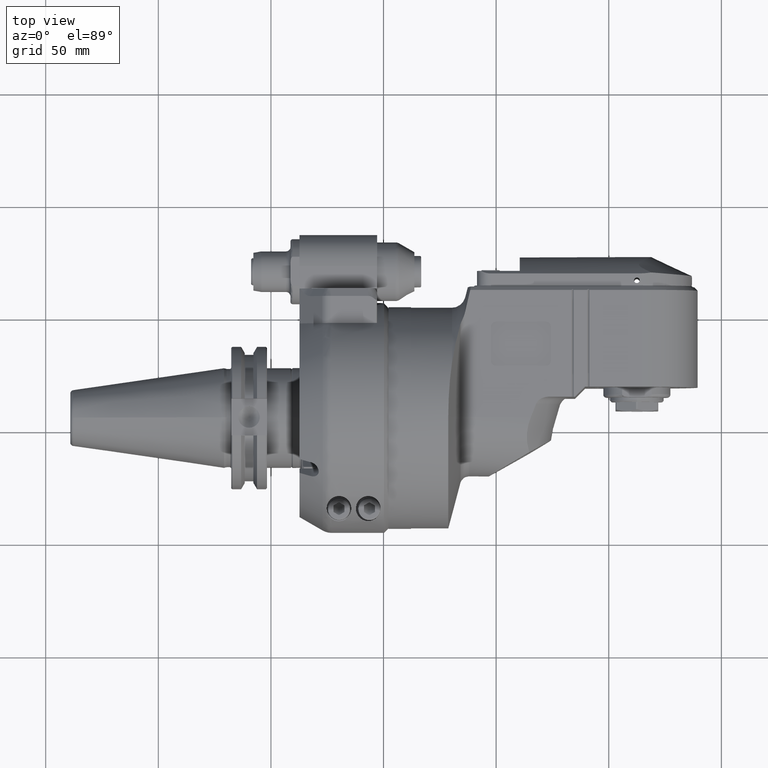
[diagram: clean part render]
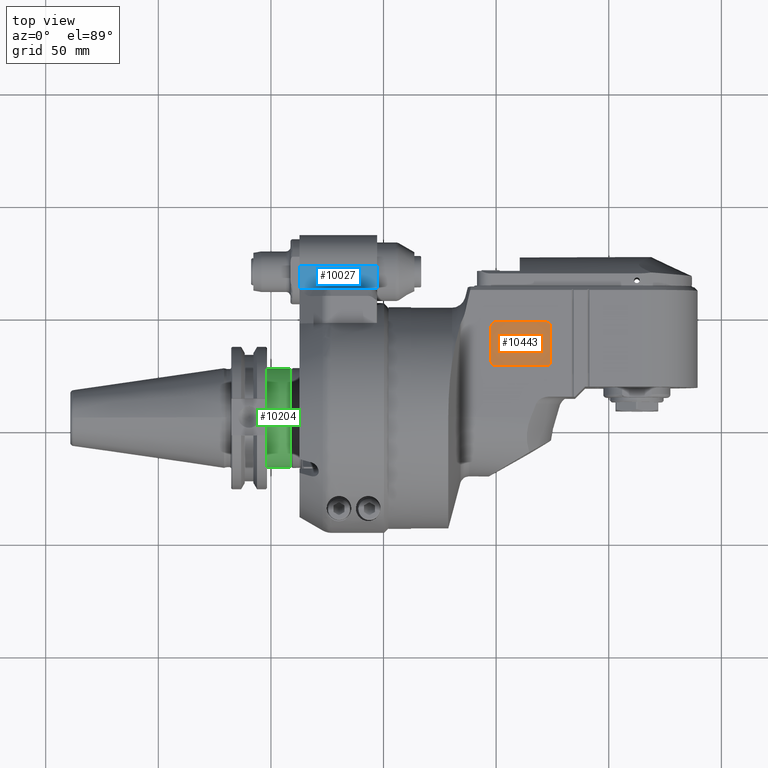
[diagram: same view with three faces highlighted in distinct colors, each labeled with its STEP entity id]
A machine part, top view with three faces highlighted in distinct colors.
Their STEP definitions:

[orange] entity #10443 — the highlighted planar face has unit normal (0, 0, 1).
#1081=PLANE('',#11704);
#1738=FACE_OUTER_BOUND('',#2453,.T.);
#2453=EDGE_LOOP('',(#9340,#9341,#9342,#9343,#9344,#9345,#9346,#9347));
#3159=LINE('',#48319,#3849);
#3160=LINE('',#48323,#3850);
#3161=LINE('',#48327,#3851);
#3162=LINE('',#48330,#3852);
#3849=VECTOR('',#14376,22.5);
#3850=VECTOR('',#14379,15.5);
#3851=VECTOR('',#14382,22.5);
#3852=VECTOR('',#14385,15.5);
#4379=CIRCLE('',#11703,2.);
#4380=CIRCLE('',#11705,2.);
#4381=CIRCLE('',#11706,2.);
#4382=CIRCLE('',#11707,2.);
#5293=VERTEX_POINT('',#48312);
#5294=VERTEX_POINT('',#48313);
#5295=VERTEX_POINT('',#48318);
#5296=VERTEX_POINT('',#48320);
#5297=VERTEX_POINT('',#48322);
#5298=VERTEX_POINT('',#48324);
#5299=VERTEX_POINT('',#48326);
#5300=VERTEX_POINT('',#48328);
#6671=EDGE_CURVE('',#5293,#5294,#4379,.T.);
#6674=EDGE_CURVE('',#5294,#5295,#3159,.T.);
#6675=EDGE_CURVE('',#5295,#5296,#4380,.T.);
#6676=EDGE_CURVE('',#5296,#5297,#3160,.T.);
#6677=EDGE_CURVE('',#5297,#5298,#4381,.T.);
#6678=EDGE_CURVE('',#5298,#5299,#3161,.T.);
#6679=EDGE_CURVE('',#5300,#5299,#4382,.T.);
#6680=EDGE_CURVE('',#5300,#5293,#3162,.T.);
#9340=ORIENTED_EDGE('',*,*,#6671,.T.);
#9341=ORIENTED_EDGE('',*,*,#6674,.T.);
#9342=ORIENTED_EDGE('',*,*,#6675,.T.);
#9343=ORIENTED_EDGE('',*,*,#6676,.T.);
#9344=ORIENTED_EDGE('',*,*,#6677,.T.);
#9345=ORIENTED_EDGE('',*,*,#6678,.T.);
#9346=ORIENTED_EDGE('',*,*,#6679,.F.);
#9347=ORIENTED_EDGE('',*,*,#6680,.T.);
#10443=ADVANCED_FACE('',(#1738),#1081,.T.);
#11703=AXIS2_PLACEMENT_3D('',#48314,#14370,#14371);
#11704=AXIS2_PLACEMENT_3D('',#48317,#14374,#14375);
#11705=AXIS2_PLACEMENT_3D('',#48321,#14377,#14378);
#11706=AXIS2_PLACEMENT_3D('',#48325,#14380,#14381);
#11707=AXIS2_PLACEMENT_3D('',#48329,#14383,#14384);
#14370=DIRECTION('center_axis',(0.,0.,1.));
#14371=DIRECTION('ref_axis',(-1.,0.,0.));
#14374=DIRECTION('center_axis',(0.,0.,1.));
#14375=DIRECTION('ref_axis',(1.,0.,0.));
#14376=DIRECTION('',(1.,0.,0.));
#14377=DIRECTION('center_axis',(0.,0.,1.));
#14378=DIRECTION('ref_axis',(0.,-1.,0.));
#14379=DIRECTION('',(0.,1.,0.));
#14380=DIRECTION('center_axis',(0.,0.,1.));
#14381=DIRECTION('ref_axis',(1.,0.,0.));
#14382=DIRECTION('',(-1.,0.,0.));
#14383=DIRECTION('center_axis',(0.,0.,-1.));
#14384=DIRECTION('ref_axis',(-1.,0.,0.));
#14385=DIRECTION('',(0.,-1.,0.));
#48312=CARTESIAN_POINT('',(33.75,24.75,25.7));
#48313=CARTESIAN_POINT('',(35.75,22.75,25.7));
#48314=CARTESIAN_POINT('Origin',(35.75,24.75,25.7));
#48317=CARTESIAN_POINT('Origin',(0.,0.,25.7));
#48318=CARTESIAN_POINT('',(58.25,22.75,25.7));
#48319=CARTESIAN_POINT('',(35.75,22.75,25.7));
#48320=CARTESIAN_POINT('',(60.25,24.75,25.7));
#48321=CARTESIAN_POINT('Origin',(58.25,24.75,25.7));
#48322=CARTESIAN_POINT('',(60.25,40.25,25.7));
#48323=CARTESIAN_POINT('',(60.25,24.75,25.7));
#48324=CARTESIAN_POINT('',(58.25,42.25,25.7));
#48325=CARTESIAN_POINT('Origin',(58.25,40.25,25.7));
#48326=CARTESIAN_POINT('',(35.75,42.25,25.7));
#48327=CARTESIAN_POINT('',(58.25,42.25,25.7));
#48328=CARTESIAN_POINT('',(33.75,40.25,25.7));
#48329=CARTESIAN_POINT('Origin',(35.75,40.25,25.7));
#48330=CARTESIAN_POINT('',(33.75,40.25,25.7));

[blue] entity #10027 — the highlighted planar face has unit normal (-0, 0, -1).
#881=PLANE('',#10925);
#1322=FACE_OUTER_BOUND('',#1944,.T.);
#1944=EDGE_LOOP('',(#7347,#7348,#7349,#7350));
#2675=LINE('',#15574,#3365);
#2698=LINE('',#15650,#3388);
#2707=LINE('',#15681,#3397);
#2710=LINE('',#15689,#3400);
#3365=VECTOR('',#12272,10.);
#3388=VECTOR('',#12329,10.);
#3397=VECTOR('',#12358,34.5);
#3400=VECTOR('',#12369,34.5);
#4609=VERTEX_POINT('',#15571);
#4610=VERTEX_POINT('',#15573);
#4633=VERTEX_POINT('',#15647);
#4634=VERTEX_POINT('',#15649);
#5628=EDGE_CURVE('',#4610,#4609,#2675,.T.);
#5663=EDGE_CURVE('',#4634,#4633,#2698,.T.);
#5680=EDGE_CURVE('',#4633,#4610,#2707,.T.);
#5684=EDGE_CURVE('',#4634,#4609,#2710,.T.);
#7347=ORIENTED_EDGE('',*,*,#5680,.T.);
#7348=ORIENTED_EDGE('',*,*,#5628,.T.);
#7349=ORIENTED_EDGE('',*,*,#5684,.F.);
#7350=ORIENTED_EDGE('',*,*,#5663,.T.);
#10027=ADVANCED_FACE('',(#1322),#881,.F.);
#10925=AXIS2_PLACEMENT_3D('',#15688,#12367,#12368);
#12272=DIRECTION('',(0.,1.,0.));
#12329=DIRECTION('',(0.,-1.,0.));
#12358=DIRECTION('',(1.,0.,0.));
#12367=DIRECTION('center_axis',(0.,0.,-1.));
#12368=DIRECTION('ref_axis',(1.,0.,0.));
#12369=DIRECTION('',(1.,0.,0.));
#15571=CARTESIAN_POINT('',(-17.,67.25,15.));
#15573=CARTESIAN_POINT('',(-17.,57.25,15.));
#15574=CARTESIAN_POINT('',(-17.,57.25,15.));
#15647=CARTESIAN_POINT('',(-51.5,57.25,15.));
#15649=CARTESIAN_POINT('',(-51.5,67.25,15.));
#15650=CARTESIAN_POINT('',(-51.5,67.25,15.));
#15681=CARTESIAN_POINT('',(-51.5,57.25,15.));
#15688=CARTESIAN_POINT('Origin',(-64.3,37.7999976,15.));
#15689=CARTESIAN_POINT('',(-51.5,67.25,15.));

[green] entity #10204 — the highlighted cylindrical surface (bore or boss wall) has radius 22.225 mm, axis along (1, 0, -0).
#1499=FACE_OUTER_BOUND('',#2144,.T.);
#2144=EDGE_LOOP('',(#8164,#8165,#8166,#8167,#8168));
#2878=LINE('',#46412,#3568);
#3568=VECTOR('',#13137,22.225);
#4151=CIRCLE('',#11223,22.225);
#4152=CIRCLE('',#11224,22.225);
#4153=CIRCLE('',#11226,22.225);
#4885=VERTEX_POINT('',#46405);
#4886=VERTEX_POINT('',#46406);
#4887=VERTEX_POINT('',#46411);
#6066=EDGE_CURVE('',#4885,#4886,#4151,.T.);
#6068=EDGE_CURVE('',#4886,#4885,#4152,.T.);
#6069=EDGE_CURVE('',#4885,#4887,#2878,.T.);
#6070=EDGE_CURVE('',#4887,#4887,#4153,.T.);
#8164=ORIENTED_EDGE('',*,*,#6066,.F.);
#8165=ORIENTED_EDGE('',*,*,#6069,.T.);
#8166=ORIENTED_EDGE('',*,*,#6070,.F.);
#8167=ORIENTED_EDGE('',*,*,#6069,.F.);
#8168=ORIENTED_EDGE('',*,*,#6068,.F.);
#9834=CYLINDRICAL_SURFACE('',#11225,22.225);
#10204=ADVANCED_FACE('',(#1499),#9834,.T.);
#11223=AXIS2_PLACEMENT_3D('',#46407,#13130,#13131);
#11224=AXIS2_PLACEMENT_3D('',#46409,#13133,#13134);
#11225=AXIS2_PLACEMENT_3D('',#46410,#13135,#13136);
#11226=AXIS2_PLACEMENT_3D('',#46413,#13138,#13139);
#13130=DIRECTION('center_axis',(-1.,0.,0.));
#13131=DIRECTION('ref_axis',(0.,-1.,0.));
#13133=DIRECTION('center_axis',(-1.,0.,0.));
#13134=DIRECTION('ref_axis',(0.,-1.,0.));
#13135=DIRECTION('center_axis',(-1.,0.,0.));
#13136=DIRECTION('ref_axis',(0.,1.,0.));
#13137=DIRECTION('',(1.,0.,0.));
#13138=DIRECTION('center_axis',(1.,0.,0.));
#13139=DIRECTION('ref_axis',(0.,1.,0.));
#46405=CARTESIAN_POINT('',(12.5,-22.225,0.));
#46406=CARTESIAN_POINT('',(12.5,22.225,2.72177751110499E-15));
#46407=CARTESIAN_POINT('Origin',(12.5,0.,0.));
#46409=CARTESIAN_POINT('Origin',(12.5,0.,0.));
#46410=CARTESIAN_POINT('Origin',(17.475,0.,0.));
#46411=CARTESIAN_POINT('',(22.95,-22.225,2.72177751110499E-15));
#46412=CARTESIAN_POINT('',(17.475,-22.225,2.72177751110499E-15));
#46413=CARTESIAN_POINT('Origin',(22.95,0.,0.));